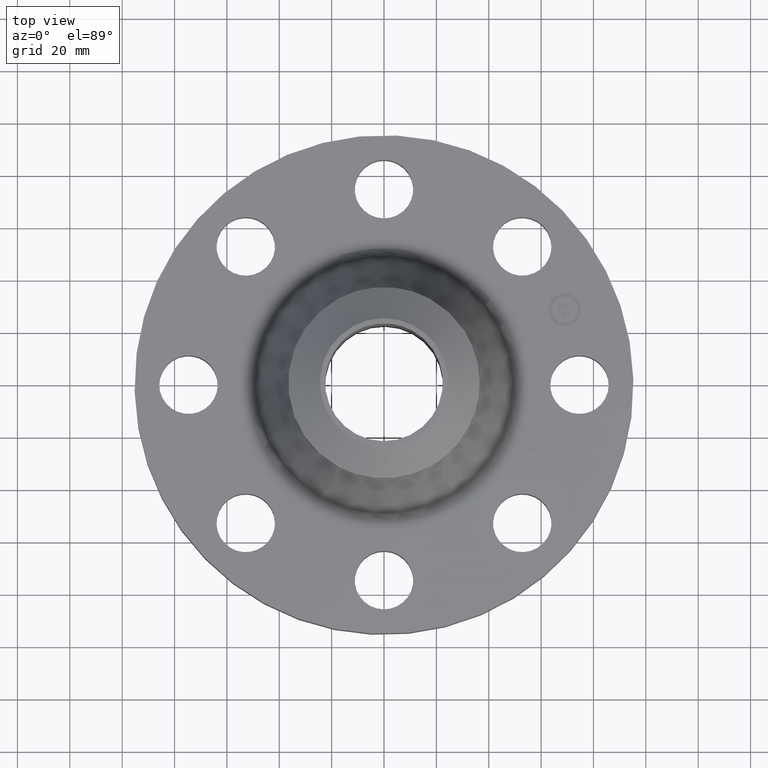
[diagram: clean part render]
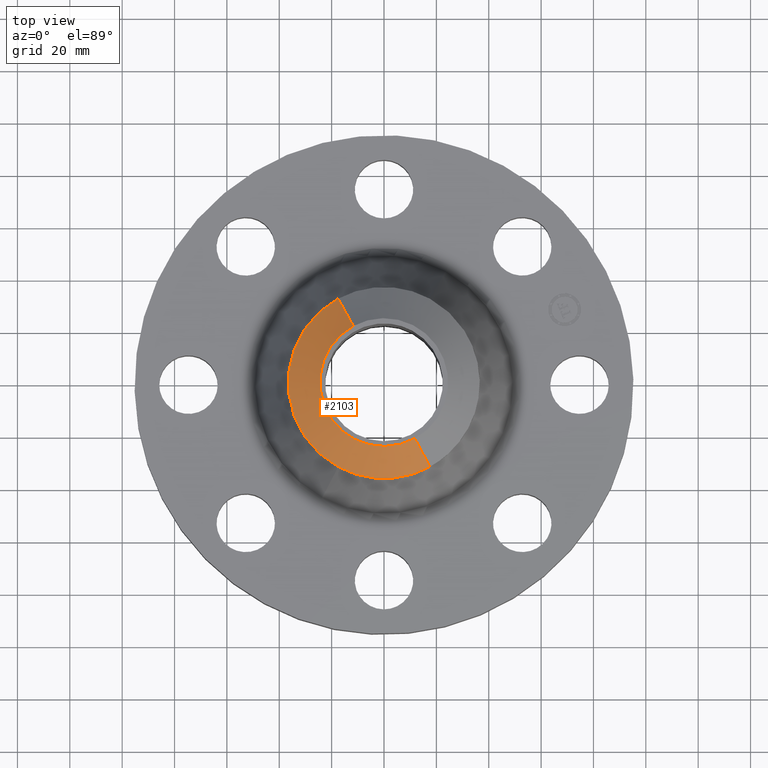
[diagram: same view with one face highlighted and labeled with its STEP entity id]
A machine part, top view. The second image highlights one B-rep face of the part: STEP entity #2103.
In plain terms, the highlighted conical surface has half-angle 52.5 deg.
Its self-contained STEP definition (entity closure, byte-faithful):
#1394=AXIS2_PLACEMENT_3D('Circle Axis2P3D',#1392,#1393,$) ;
#1434=AXIS2_PLACEMENT_3D('Circle Axis2P3D',#1432,#1433,$) ;
#1485=AXIS2_PLACEMENT_3D('Circle Axis2P3D',#1483,#1484,$) ;
#2094=AXIS2_PLACEMENT_3D('Cone Axis2P3D',#2091,#2092,#2093) ;
#1387=CARTESIAN_POINT('Vertex',(0.462281356846,-0.846200347682,2.94000000001)) ;
#1389=CARTESIAN_POINT('Vertex',(-0.462281356846,0.846200347682,2.94000000001)) ;
#1392=CARTESIAN_POINT('Axis2P3D Location',(-1.28119387365E-011,-1.07859827806E-011,2.94000000001)) ;
#1429=CARTESIAN_POINT('Vertex',(-0.690372775594,-1.26371888913,2.57493663303)) ;
#1432=CARTESIAN_POINT('Axis2P3D Location',(0.,0.,2.57493663303)) ;
#1436=CARTESIAN_POINT('Vertex',(-0.690372775594,1.26371888913,2.57493663303)) ;
#1480=CARTESIAN_POINT('Vertex',(0.690372775594,-1.26371888913,2.57493663305)) ;
#1483=CARTESIAN_POINT('Axis2P3D Location',(0.,0.,2.57493663303)) ;
#2066=CARTESIAN_POINT('Line Origine',(-0.57632706622,1.0549596184,2.75746831653)) ;
#2071=CARTESIAN_POINT('Line Origine',(0.57632706622,-1.0549596184,2.75746831653)) ;
#2091=CARTESIAN_POINT('Axis2P3D Location',(0.,0.,2.94000000001)) ;
#1393=DIRECTION('Axis2P3D Direction',(0.,0.,-0.0393700787402)) ;
#1433=DIRECTION('Axis2P3D Direction',(-0.,0.,-0.0393700787402)) ;
#1484=DIRECTION('Axis2P3D Direction',(-0.,0.,-0.0393700787402)) ;
#2067=DIRECTION('Vector Direction',(-0.014974561121,0.02741075027,-0.023966985394)) ;
#2072=DIRECTION('Vector Direction',(0.014974561121,-0.02741075027,-0.023966985394)) ;
#2092=DIRECTION('Axis2P3D Direction',(-0.,-0.,-0.0393700787402)) ;
#2093=DIRECTION('Axis2P3D XDirection',(0.0188750212049,-0.0345504945626,0.)) ;
#2068=VECTOR('Line Direction',#2067,0.0393700787402) ;
#2073=VECTOR('Line Direction',#2072,0.0393700787402) ;
#2097=ORIENTED_EDGE('',*,*,#2075,.F.) ;
#2098=ORIENTED_EDGE('',*,*,#1396,.F.) ;
#2099=ORIENTED_EDGE('',*,*,#2070,.T.) ;
#2100=ORIENTED_EDGE('',*,*,#1438,.T.) ;
#2101=ORIENTED_EDGE('',*,*,#1487,.F.) ;
#2103=ADVANCED_FACE('PartBody',(#2102),#2095,.T.) ;
#1395=CIRCLE('generated circle',#1394,0.964240157473) ;
#1435=CIRCLE('generated circle',#1434,1.44000000001) ;
#1486=CIRCLE('generated circle',#1485,1.44000000001) ;
#2095=CONICAL_SURFACE('Cone',#2094,0.964240157484,0.916297857297) ;
#1396=EDGE_CURVE('',#1390,#1388,#1395,.F.) ;
#1438=EDGE_CURVE('',#1437,#1430,#1435,.F.) ;
#1487=EDGE_CURVE('',#1481,#1430,#1486,.T.) ;
#2070=EDGE_CURVE('',#1390,#1437,#2069,.T.) ;
#2075=EDGE_CURVE('',#1388,#1481,#2074,.T.) ;
#2096=EDGE_LOOP('',(#2097,#2098,#2099,#2100,#2101)) ;
#2102=FACE_OUTER_BOUND('',#2096,.T.) ;
#2069=LINE('Line',#2066,#2068) ;
#2074=LINE('Line',#2071,#2073) ;
#1388=VERTEX_POINT('',#1387) ;
#1390=VERTEX_POINT('',#1389) ;
#1430=VERTEX_POINT('',#1429) ;
#1437=VERTEX_POINT('',#1436) ;
#1481=VERTEX_POINT('',#1480) ;